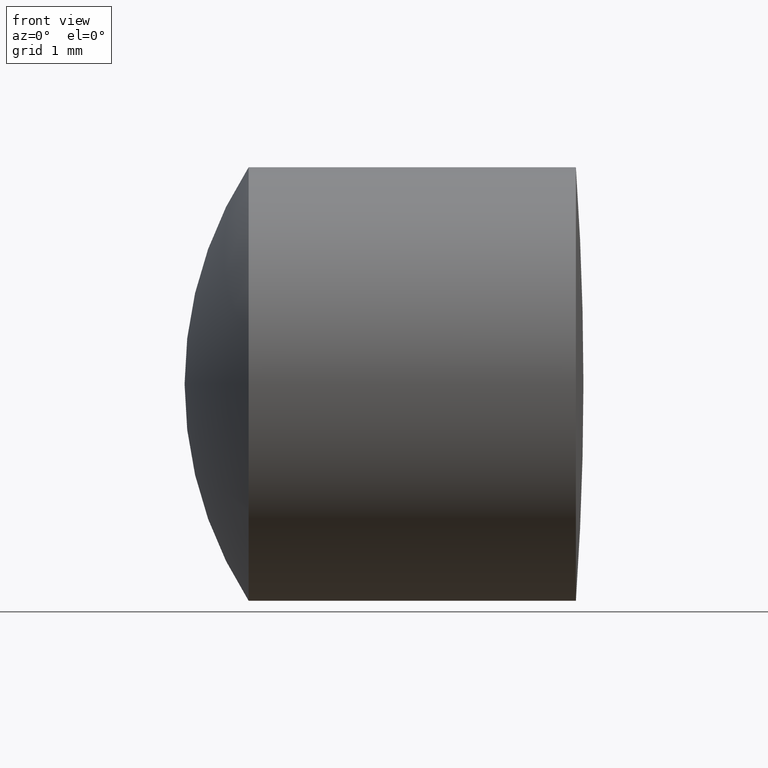
[diagram: clean part render]
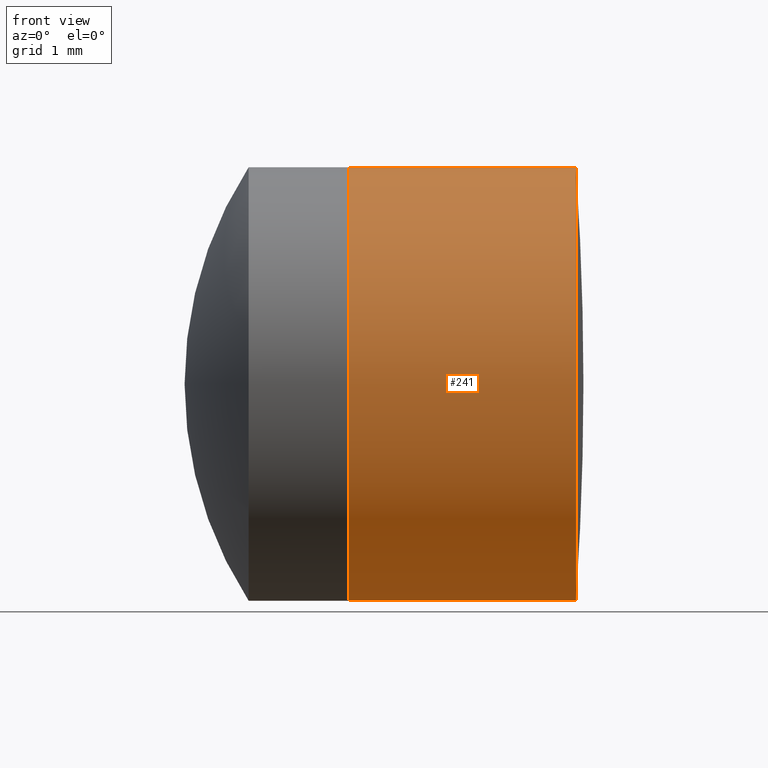
[diagram: same view with one face highlighted and labeled with its STEP entity id]
A machine part, front view. The second image highlights one B-rep face of the part: STEP entity #241.
In plain terms, the highlighted cylindrical surface (partial cylindrical patch) has radius 2.5 mm, axis along (-1, -0, -0).
Its self-contained STEP definition (entity closure, byte-faithful):
#11 = CARTESIAN_POINT ( 'NONE',  ( 258.6254749675014800, 0.0000000000000000000, 2.500000000000030200 ) ) ;
#30 = CIRCLE ( 'NONE', #247, 2.500000000000030200 ) ;
#36 = CARTESIAN_POINT ( 'NONE',  ( 258.6254749675014800, 0.0000000000000000000, 0.0000000000000000000 ) ) ;
#43 = CARTESIAN_POINT ( 'NONE',  ( 261.2452385937934300, 0.0000000000000000000, 2.500000000000030200 ) ) ;
#44 = EDGE_CURVE ( 'NONE', #159, #163, #30, .T. ) ;
#53 = DIRECTION ( 'NONE',  ( -1.000000000000000000, -0.0000000000000000000, -0.0000000000000000000 ) ) ;
#62 = CARTESIAN_POINT ( 'NONE',  ( -0.5519199926577972300, 0.0000000000000000000, 2.500000000000030200 ) ) ;
#71 = CARTESIAN_POINT ( 'NONE',  ( 261.2452385937934300, 3.061616997868419600E-016, -2.500000000000030200 ) ) ;
#88 = EDGE_CURVE ( 'NONE', #312, #174, #335, .T. ) ;
#92 = DIRECTION ( 'NONE',  ( -1.000000000000000000, -0.0000000000000000000, -0.0000000000000000000 ) ) ;
#102 = CARTESIAN_POINT ( 'NONE',  ( -0.5519199926577972300, 3.061616997868419600E-016, -2.500000000000030200 ) ) ;
#109 = DIRECTION ( 'NONE',  ( 0.0000000000000000000, 0.0000000000000000000, 1.000000000000000000 ) ) ;
#137 = VECTOR ( 'NONE', #92, 1000.000000000000000 ) ;
#146 = DIRECTION ( 'NONE',  ( -1.000000000000000000, -0.0000000000000000000, -0.0000000000000000000 ) ) ;
#148 = DIRECTION ( 'NONE',  ( 0.0000000000000000000, 0.0000000000000000000, 1.000000000000000000 ) ) ;
#154 = EDGE_CURVE ( 'NONE', #159, #312, #268, .T. ) ;
#156 = CARTESIAN_POINT ( 'NONE',  ( -0.5519199926577972300, 0.0000000000000000000, 0.0000000000000000000 ) ) ;
#159 = VERTEX_POINT ( 'NONE', #71 ) ;
#163 = VERTEX_POINT ( 'NONE', #43 ) ;
#171 = DIRECTION ( 'NONE',  ( -1.000000000000000000, -0.0000000000000000000, -0.0000000000000000000 ) ) ;
#172 = AXIS2_PLACEMENT_3D ( 'NONE', #36, #197, #109 ) ;
#174 = VERTEX_POINT ( 'NONE', #11 ) ;
#188 = LINE ( 'NONE', #62, #324 ) ;
#197 = DIRECTION ( 'NONE',  ( -1.000000000000000000, -0.0000000000000000000, -0.0000000000000000000 ) ) ;
#203 = CYLINDRICAL_SURFACE ( 'NONE', #225, 2.500000000000030200 ) ;
#207 = EDGE_LOOP ( 'NONE', ( #234, #274, #270, #291 ) ) ;
#219 = EDGE_CURVE ( 'NONE', #163, #174, #188, .T. ) ;
#225 = AXIS2_PLACEMENT_3D ( 'NONE', #156, #53, #148 ) ;
#234 = ORIENTED_EDGE ( 'NONE', *, *, #154, .F. ) ;
#241 = ADVANCED_FACE ( 'NONE', ( #295 ), #203, .T. ) ;
#247 = AXIS2_PLACEMENT_3D ( 'NONE', #264, #171, #327 ) ;
#264 = CARTESIAN_POINT ( 'NONE',  ( 261.2452385937934300, 0.0000000000000000000, 0.0000000000000000000 ) ) ;
#267 = CARTESIAN_POINT ( 'NONE',  ( 258.6254749675014800, 3.061616997868420100E-016, -2.500000000000030200 ) ) ;
#268 = LINE ( 'NONE', #102, #137 ) ;
#270 = ORIENTED_EDGE ( 'NONE', *, *, #219, .T. ) ;
#274 = ORIENTED_EDGE ( 'NONE', *, *, #44, .T. ) ;
#291 = ORIENTED_EDGE ( 'NONE', *, *, #88, .F. ) ;
#295 = FACE_OUTER_BOUND ( 'NONE', #207, .T. ) ;
#312 = VERTEX_POINT ( 'NONE', #267 ) ;
#324 = VECTOR ( 'NONE', #146, 1000.000000000000000 ) ;
#327 = DIRECTION ( 'NONE',  ( 0.0000000000000000000, 0.0000000000000000000, 1.000000000000000000 ) ) ;
#335 = CIRCLE ( 'NONE', #172, 2.500000000000030200 ) ;